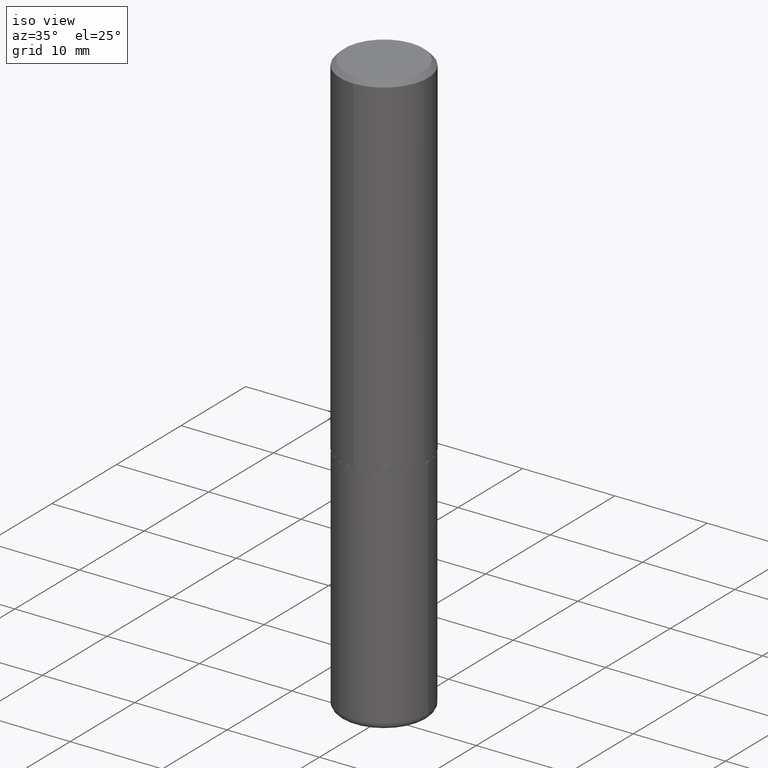
[diagram: clean part render]
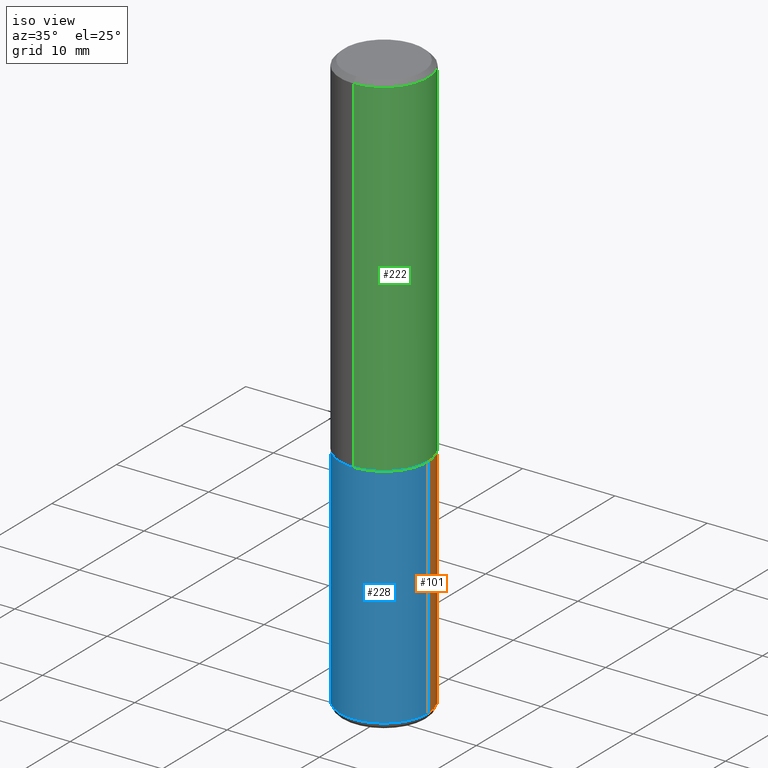
[diagram: same view with three faces highlighted in distinct colors, each labeled with its STEP entity id]
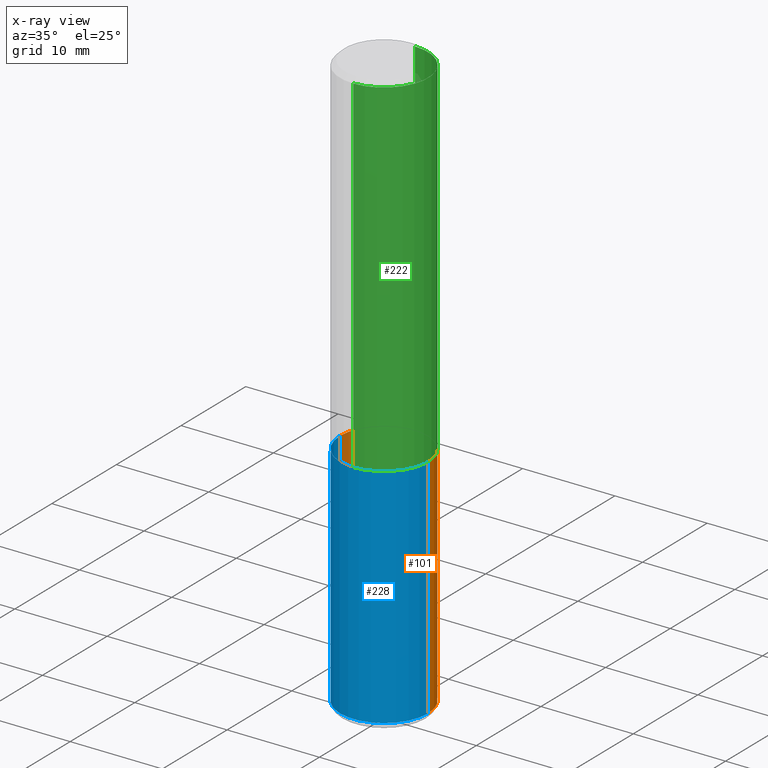
[diagram: x-ray of the same camera — body ghosted, the three highlighted faces saturated]
A machine part, iso view with three faces highlighted in distinct colors.
The next image is the same camera in x-ray (body ghosted, the three faces saturated) — at least one of them is partly hidden behind the body in this view.
Their STEP definitions:

[orange] entity #101 — the highlighted cylindrical surface (partial cylindrical patch) has radius 4.7625 mm, axis along (-0, 0, 1).
#14 = ORIENTED_EDGE ( 'NONE', *, *, #56, .T. ) ;
#17 = DIRECTION ( 'NONE',  ( -2.445468806185136597E-29, 3.491481338843145583E-15, 1.000000000000000000 ) ) ;
#26 = ORIENTED_EDGE ( 'NONE', *, *, #165, .F. ) ;
#41 = EDGE_CURVE ( 'NONE', #53, #332, #87, .T. ) ;
#44 = AXIS2_PLACEMENT_3D ( 'NONE', #108, #17, #232 ) ;
#52 = DIRECTION ( 'NONE',  ( -2.445468806185136877E-29, 3.491481338843145188E-15, 1.000000000000000000 ) ) ;
#53 = VERTEX_POINT ( 'NONE', #403 ) ;
#56 = EDGE_CURVE ( 'NONE', #332, #402, #94, .T. ) ;
#59 = ORIENTED_EDGE ( 'NONE', *, *, #338, .F. ) ;
#81 = LINE ( 'NONE', #181, #122 ) ;
#87 = CIRCLE ( 'NONE', #378, 0.1875000000000000555 ) ;
#94 = LINE ( 'NONE', #264, #227 ) ;
#97 = DIRECTION ( 'NONE',  ( -2.445468806185136597E-29, 3.491481338843145583E-15, 1.000000000000000000 ) ) ;
#101 = ADVANCED_FACE ( 'NONE', ( #263 ), #397, .T. ) ;
#108 = CARTESIAN_POINT ( 'NONE',  ( 0.000000000000000000, 0.000000000000000000, 0.000000000000000000 ) ) ;
#122 = VECTOR ( 'NONE', #312, 39.37007874015748143 ) ;
#143 = CIRCLE ( 'NONE', #218, 0.1875000000000000278 ) ;
#165 = EDGE_CURVE ( 'NONE', #372, #402, #143, .T. ) ;
#181 = CARTESIAN_POINT ( 'NONE',  ( 0.1875000000000000555, -1.309305502066175205E-15, 9.142831454617382414E-30 ) ) ;
#203 = DIRECTION ( 'NONE',  ( -2.445468806185136597E-29, 3.491481338843145583E-15, 1.000000000000000000 ) ) ;
#218 = AXIS2_PLACEMENT_3D ( 'NONE', #304, #203, #298 ) ;
#225 = CARTESIAN_POINT ( 'NONE',  ( -0.1875000000000000278, -5.598322828053456632E-15, -1.500000000000000222 ) ) ;
#227 = VECTOR ( 'NONE', #52, 39.37007874015748143 ) ;
#232 = DIRECTION ( 'NONE',  ( 1.000000000000000000, -6.982962677686265922E-15, 4.876176775795935793E-29 ) ) ;
#252 = CARTESIAN_POINT ( 'NONE',  ( 0.1875000000000000278, -6.546527510330893974E-15, -1.500000000000000222 ) ) ;
#261 = EDGE_LOOP ( 'NONE', ( #376, #14, #26, #59 ) ) ;
#263 = FACE_OUTER_BOUND ( 'NONE', #261, .T. ) ;
#264 = CARTESIAN_POINT ( 'NONE',  ( -0.1875000000000000555, 1.332267629550188243E-15, -9.223003294227950793E-30 ) ) ;
#277 = CARTESIAN_POINT ( 'NONE',  ( 6.040307951277287977E-29, -8.623958906942569995E-15, -2.470000000000000195 ) ) ;
#298 = DIRECTION ( 'NONE',  ( 1.000000000000000000, -6.982962677686266711E-15, 0.000000000000000000 ) ) ;
#304 = CARTESIAN_POINT ( 'NONE',  ( 3.668203209277704895E-29, -5.237222008264718177E-15, -1.500000000000000222 ) ) ;
#312 = DIRECTION ( 'NONE',  ( -2.445468806185136877E-29, 3.491481338843145188E-15, 1.000000000000000000 ) ) ;
#314 = CARTESIAN_POINT ( 'NONE',  ( -0.1875000000000001943, -7.291691277392382147E-15, -2.470000000000000195 ) ) ;
#332 = VERTEX_POINT ( 'NONE', #314 ) ;
#338 = EDGE_CURVE ( 'NONE', #53, #372, #81, .T. ) ;
#366 = DIRECTION ( 'NONE',  ( 1.000000000000000000, -6.982962677686265922E-15, 0.000000000000000000 ) ) ;
#372 = VERTEX_POINT ( 'NONE', #252 ) ;
#376 = ORIENTED_EDGE ( 'NONE', *, *, #41, .T. ) ;
#378 = AXIS2_PLACEMENT_3D ( 'NONE', #277, #97, #366 ) ;
#397 = CYLINDRICAL_SURFACE ( 'NONE', #44, 0.1875000000000000555 ) ;
#402 = VERTEX_POINT ( 'NONE', #225 ) ;
#403 = CARTESIAN_POINT ( 'NONE',  ( 0.1875000000000001943, -9.933264409008746581E-15, -2.470000000000000195 ) ) ;

[blue] entity #228 — the highlighted cylindrical surface (partial cylindrical patch) has radius 4.7625 mm, axis along (-0, 0, 1).
#52 = DIRECTION ( 'NONE',  ( -2.445468806185136877E-29, 3.491481338843145188E-15, 1.000000000000000000 ) ) ;
#53 = VERTEX_POINT ( 'NONE', #403 ) ;
#55 = CARTESIAN_POINT ( 'NONE',  ( 6.040307951277287977E-29, -8.623958906942569995E-15, -2.470000000000000195 ) ) ;
#56 = EDGE_CURVE ( 'NONE', #332, #402, #94, .T. ) ;
#68 = EDGE_CURVE ( 'NONE', #402, #372, #236, .T. ) ;
#78 = DIRECTION ( 'NONE',  ( -2.445468806185136597E-29, 3.491481338843145583E-15, 1.000000000000000000 ) ) ;
#80 = AXIS2_PLACEMENT_3D ( 'NONE', #55, #123, #246 ) ;
#81 = LINE ( 'NONE', #181, #122 ) ;
#94 = LINE ( 'NONE', #264, #227 ) ;
#103 = DIRECTION ( 'NONE',  ( 1.000000000000000000, -6.982962677686266711E-15, 0.000000000000000000 ) ) ;
#110 = FACE_OUTER_BOUND ( 'NONE', #184, .T. ) ;
#122 = VECTOR ( 'NONE', #312, 39.37007874015748143 ) ;
#123 = DIRECTION ( 'NONE',  ( -2.445468806185136597E-29, 3.491481338843145583E-15, 1.000000000000000000 ) ) ;
#175 = CARTESIAN_POINT ( 'NONE',  ( 3.668203209277704895E-29, -5.237222008264718177E-15, -1.500000000000000222 ) ) ;
#181 = CARTESIAN_POINT ( 'NONE',  ( 0.1875000000000000555, -1.309305502066175205E-15, 9.142831454617382414E-30 ) ) ;
#184 = EDGE_LOOP ( 'NONE', ( #374, #291, #223, #326 ) ) ;
#206 = DIRECTION ( 'NONE',  ( -2.445468806185136597E-29, 3.491481338843145583E-15, 1.000000000000000000 ) ) ;
#223 = ORIENTED_EDGE ( 'NONE', *, *, #338, .T. ) ;
#225 = CARTESIAN_POINT ( 'NONE',  ( -0.1875000000000000278, -5.598322828053456632E-15, -1.500000000000000222 ) ) ;
#227 = VECTOR ( 'NONE', #52, 39.37007874015748143 ) ;
#228 = ADVANCED_FACE ( 'NONE', ( #110 ), #239, .T. ) ;
#236 = CIRCLE ( 'NONE', #385, 0.1875000000000000278 ) ;
#239 = CYLINDRICAL_SURFACE ( 'NONE', #396, 0.1875000000000000555 ) ;
#246 = DIRECTION ( 'NONE',  ( 1.000000000000000000, -6.982962677686265922E-15, 0.000000000000000000 ) ) ;
#252 = CARTESIAN_POINT ( 'NONE',  ( 0.1875000000000000278, -6.546527510330893974E-15, -1.500000000000000222 ) ) ;
#264 = CARTESIAN_POINT ( 'NONE',  ( -0.1875000000000000555, 1.332267629550188243E-15, -9.223003294227950793E-30 ) ) ;
#291 = ORIENTED_EDGE ( 'NONE', *, *, #354, .T. ) ;
#312 = DIRECTION ( 'NONE',  ( -2.445468806185136877E-29, 3.491481338843145188E-15, 1.000000000000000000 ) ) ;
#314 = CARTESIAN_POINT ( 'NONE',  ( -0.1875000000000001943, -7.291691277392382147E-15, -2.470000000000000195 ) ) ;
#326 = ORIENTED_EDGE ( 'NONE', *, *, #68, .F. ) ;
#332 = VERTEX_POINT ( 'NONE', #314 ) ;
#338 = EDGE_CURVE ( 'NONE', #53, #372, #81, .T. ) ;
#354 = EDGE_CURVE ( 'NONE', #332, #53, #357, .T. ) ;
#357 = CIRCLE ( 'NONE', #80, 0.1875000000000000555 ) ;
#369 = CARTESIAN_POINT ( 'NONE',  ( 0.000000000000000000, 0.000000000000000000, 0.000000000000000000 ) ) ;
#372 = VERTEX_POINT ( 'NONE', #252 ) ;
#374 = ORIENTED_EDGE ( 'NONE', *, *, #56, .F. ) ;
#385 = AXIS2_PLACEMENT_3D ( 'NONE', #175, #206, #103 ) ;
#389 = DIRECTION ( 'NONE',  ( 1.000000000000000000, -6.982962677686265922E-15, 4.876176775795935793E-29 ) ) ;
#396 = AXIS2_PLACEMENT_3D ( 'NONE', #369, #78, #389 ) ;
#402 = VERTEX_POINT ( 'NONE', #225 ) ;
#403 = CARTESIAN_POINT ( 'NONE',  ( 0.1875000000000001943, -9.933264409008746581E-15, -2.470000000000000195 ) ) ;

[green] entity #222 — the highlighted cylindrical surface (partial cylindrical patch) has radius 4.7625 mm, axis along (-0, 0, 1).
#18 = CARTESIAN_POINT ( 'NONE',  ( 1.309305502066175205E-15, 0.1874999999999999167, -0.02000000000000069431 ) ) ;
#32 = VECTOR ( 'NONE', #249, 39.37007874015748143 ) ;
#65 = AXIS2_PLACEMENT_3D ( 'NONE', #174, #393, #170 ) ;
#71 = CARTESIAN_POINT ( 'NONE',  ( 4.891458889761085187E-31, -6.982216178793409866E-17, -0.02000000000000004205 ) ) ;
#72 = EDGE_CURVE ( 'NONE', #416, #82, #95, .T. ) ;
#82 = VERTEX_POINT ( 'NONE', #331 ) ;
#85 = ORIENTED_EDGE ( 'NONE', *, *, #72, .T. ) ;
#95 = CIRCLE ( 'NONE', #65, 0.1875000000000001943 ) ;
#98 = EDGE_CURVE ( 'NONE', #82, #171, #336, .T. ) ;
#115 = LINE ( 'NONE', #242, #32 ) ;
#130 = AXIS2_PLACEMENT_3D ( 'NONE', #231, #267, #258 ) ;
#132 = DIRECTION ( 'NONE',  ( -2.445729444880537759E-29, 3.491108089396698105E-15, 1.000000000000000000 ) ) ;
#135 = CYLINDRICAL_SURFACE ( 'NONE', #130, 0.1875000000000000833 ) ;
#145 = ORIENTED_EDGE ( 'NONE', *, *, #178, .F. ) ;
#155 = AXIS2_PLACEMENT_3D ( 'NONE', #71, #132, #334 ) ;
#170 = DIRECTION ( 'NONE',  ( -6.982962677686265922E-15, -1.000000000000000000, 2.913971193241877611E-15 ) ) ;
#171 = VERTEX_POINT ( 'NONE', #18 ) ;
#174 = CARTESIAN_POINT ( 'NONE',  ( 3.666148437875925943E-29, -5.233171026005651328E-15, -1.499000000000000110 ) ) ;
#178 = EDGE_CURVE ( 'NONE', #390, #171, #363, .T. ) ;
#189 = CARTESIAN_POINT ( 'NONE',  ( -1.309305502066139509E-15, -0.1875000000000054123, -1.498999999999999444 ) ) ;
#222 = ADVANCED_FACE ( 'NONE', ( #302 ), #135, .T. ) ;
#231 = CARTESIAN_POINT ( 'NONE',  ( 0.000000000000000000, 0.000000000000000000, 0.000000000000000000 ) ) ;
#242 = CARTESIAN_POINT ( 'NONE',  ( -1.309305502066175600E-15, -0.1875000000000000833, 6.545827667618811658E-16 ) ) ;
#245 = EDGE_LOOP ( 'NONE', ( #85, #303, #145, #259 ) ) ;
#249 = DIRECTION ( 'NONE',  ( -2.445729444880537479E-29, 3.491108089396698105E-15, 1.000000000000000000 ) ) ;
#256 = VECTOR ( 'NONE', #391, 39.37007874015748143 ) ;
#258 = DIRECTION ( 'NONE',  ( -6.982962677686266711E-15, -1.000000000000000000, 3.491108089396698105E-15 ) ) ;
#259 = ORIENTED_EDGE ( 'NONE', *, *, #318, .F. ) ;
#267 = DIRECTION ( 'NONE',  ( -2.445729444880537759E-29, 3.491108089396698105E-15, 1.000000000000000000 ) ) ;
#269 = CARTESIAN_POINT ( 'NONE',  ( -1.286343374582161379E-15, -0.1875000000000000555, -0.01999999999999938979 ) ) ;
#302 = FACE_OUTER_BOUND ( 'NONE', #245, .T. ) ;
#303 = ORIENTED_EDGE ( 'NONE', *, *, #98, .T. ) ;
#318 = EDGE_CURVE ( 'NONE', #416, #390, #115, .T. ) ;
#331 = CARTESIAN_POINT ( 'NONE',  ( 1.332267629550206781E-15, 0.1874999999999949485, -1.499000000000000554 ) ) ;
#334 = DIRECTION ( 'NONE',  ( -6.982962677686266711E-15, -1.000000000000000000, 3.483106191921935949E-15 ) ) ;
#336 = LINE ( 'NONE', #361, #256 ) ;
#361 = CARTESIAN_POINT ( 'NONE',  ( 1.332267629550188243E-15, 0.1875000000000000833, -6.545827667618811658E-16 ) ) ;
#363 = CIRCLE ( 'NONE', #155, 0.1874999999999999722 ) ;
#390 = VERTEX_POINT ( 'NONE', #269 ) ;
#391 = DIRECTION ( 'NONE',  ( -2.445729444880537479E-29, 3.491108089396698105E-15, 1.000000000000000000 ) ) ;
#393 = DIRECTION ( 'NONE',  ( -2.445729444880537759E-29, 3.491108089396698105E-15, 1.000000000000000000 ) ) ;
#416 = VERTEX_POINT ( 'NONE', #189 ) ;